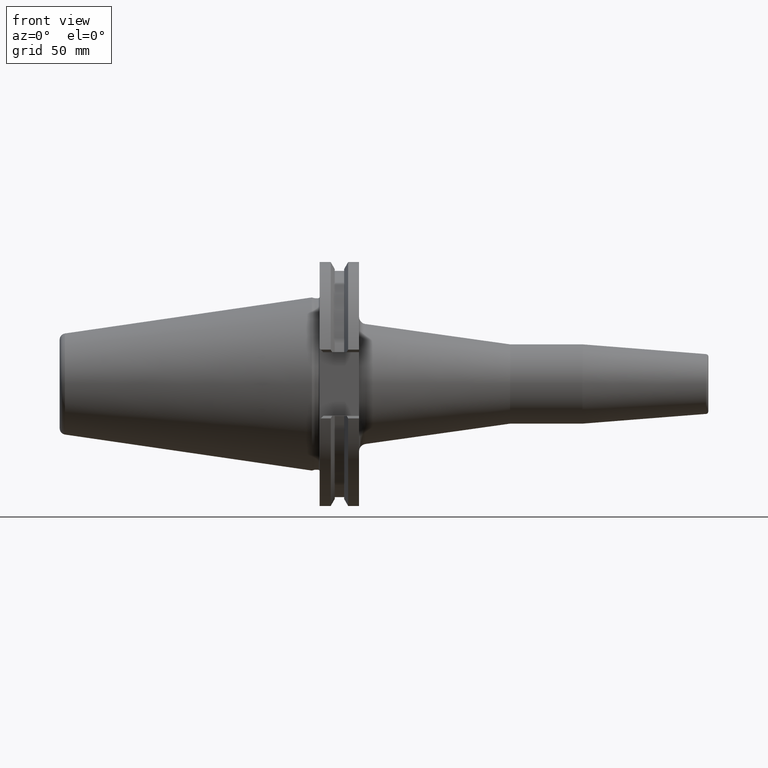
[diagram: clean part render]
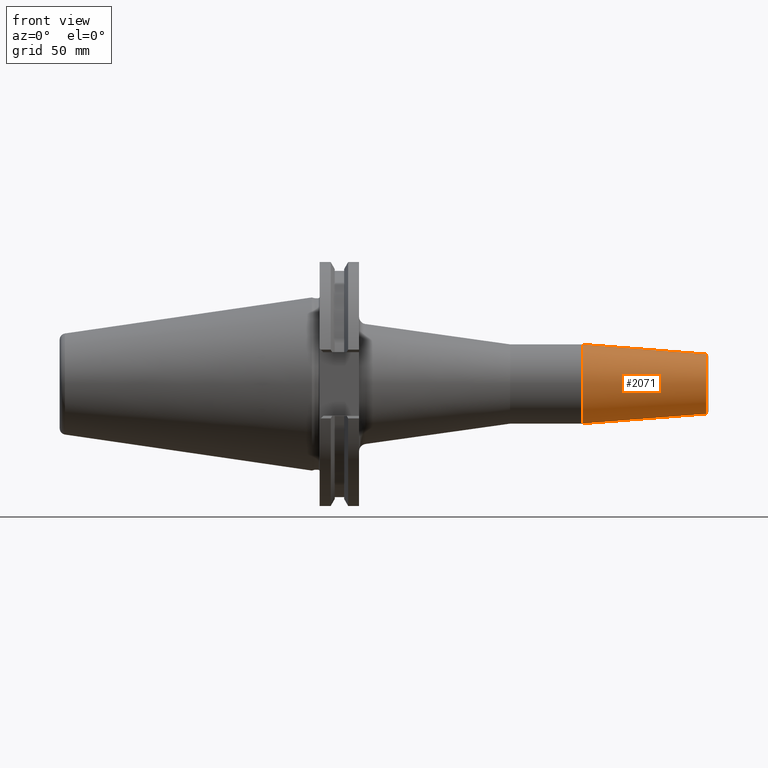
[diagram: same view with one face highlighted and labeled with its STEP entity id]
A machine part, front view. The second image highlights one B-rep face of the part: STEP entity #2071.
In plain terms, the highlighted conical surface has half-angle 4.5 deg.
Its self-contained STEP definition (entity closure, byte-faithful):
#458=DIRECTION('',(-9.969173337331E-1,0.E0,-7.845909572785E-2));
#459=VECTOR('',#458,5.005758888107E1);
#460=CARTESIAN_POINT('',(1.590784590957E2,0.E0,-1.207252684207E1));
#461=LINE('',#460,#459);
#462=DIRECTION('',(-9.969173337331E-1,0.E0,7.845909572785E-2));
#463=VECTOR('',#462,5.005758888107E1);
#464=CARTESIAN_POINT('',(1.590784590957E2,0.E0,1.207252684207E1));
#465=LINE('',#464,#463);
#466=CARTESIAN_POINT('',(1.590784590957E2,0.E0,0.E0));
#467=DIRECTION('',(-1.E0,0.E0,0.E0));
#468=DIRECTION('',(0.E0,0.E0,-1.E0));
#469=AXIS2_PLACEMENT_3D('',#466,#467,#468);
#489=CARTESIAN_POINT('',(1.091751810553E2,0.E0,0.E0));
#490=DIRECTION('',(-1.E0,0.E0,0.E0));
#491=DIRECTION('',(0.E0,0.E0,-1.E0));
#492=AXIS2_PLACEMENT_3D('',#489,#490,#491);
#1314=CARTESIAN_POINT('',(1.590784590957E2,0.E0,-1.207252684207E1));
#1316=VERTEX_POINT('',#1314);
#1317=CARTESIAN_POINT('',(1.091751810553E2,0.E0,-1.6E1));
#1318=VERTEX_POINT('',#1317);
#1344=CARTESIAN_POINT('',(1.590784590957E2,0.E0,1.207252684207E1));
#1346=VERTEX_POINT('',#1344);
#1347=CARTESIAN_POINT('',(1.091751810553E2,0.E0,1.6E1));
#1348=VERTEX_POINT('',#1347);
#2057=CARTESIAN_POINT('',(1.341268200755E2,0.E0,0.E0));
#2058=DIRECTION('',(-1.E0,0.E0,0.E0));
#2059=DIRECTION('',(0.E0,0.E0,-1.E0));
#2060=AXIS2_PLACEMENT_3D('',#2057,#2058,#2059);
#2061=CONICAL_SURFACE('',#2060,1.403626342104E1,4.5E0);
#2063=ORIENTED_EDGE('',*,*,#2062,.T.);
#2065=ORIENTED_EDGE('',*,*,#2064,.T.);
#2067=ORIENTED_EDGE('',*,*,#2066,.F.);
#2068=ORIENTED_EDGE('',*,*,#2050,.F.);
#2069=EDGE_LOOP('',(#2063,#2065,#2067,#2068));
#2070=FACE_OUTER_BOUND('',#2069,.F.);
#2071=ADVANCED_FACE('',(#2070),#2061,.T.);
#470=CIRCLE('',#469,1.207252684207E1);
#493=CIRCLE('',#492,1.6E1);
#2050=EDGE_CURVE('',#1316,#1346,#470,.T.);
#2062=EDGE_CURVE('',#1316,#1318,#461,.T.);
#2064=EDGE_CURVE('',#1318,#1348,#493,.T.);
#2066=EDGE_CURVE('',#1346,#1348,#465,.T.);